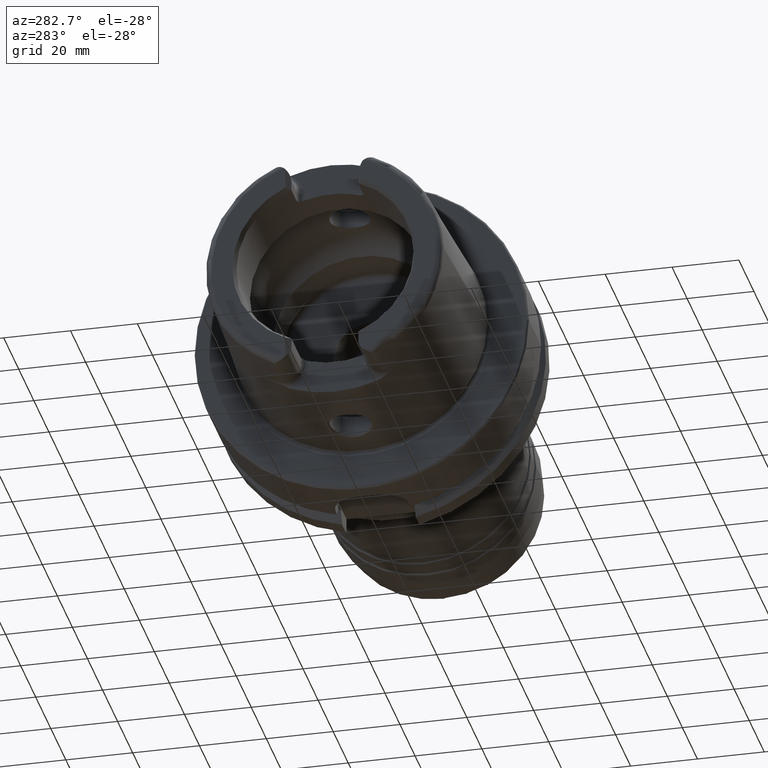
[diagram: clean part render]
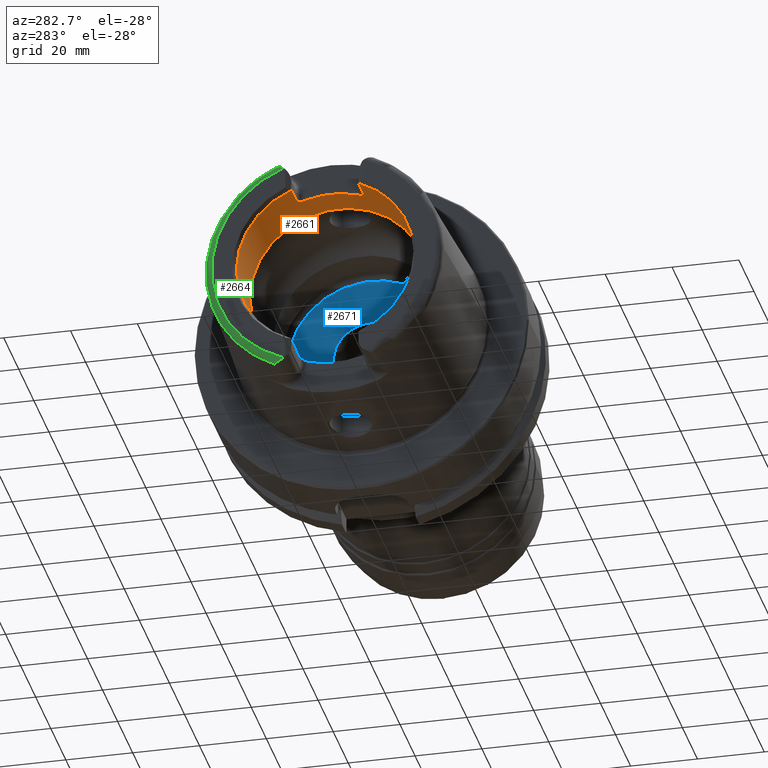
[diagram: same view with three faces highlighted in distinct colors, each labeled with its STEP entity id]
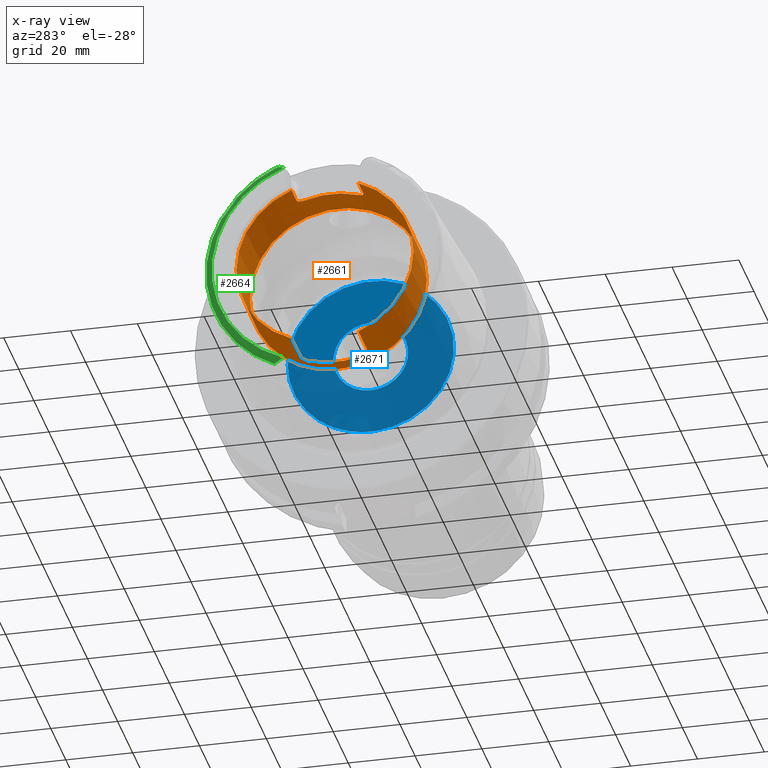
[diagram: x-ray of the same camera — body ghosted, the three highlighted faces saturated]
A machine part, auxiliary view with three faces highlighted in distinct colors.
The next image is the same camera in x-ray (body ghosted, the three faces saturated) — at least one of them is partly hidden behind the body in this view.
Their STEP definitions:

[orange] entity #2661 — the highlighted cylindrical surface (bore or boss wall) has radius 26.5 mm, axis along (-1, 0, 0).
#81=B_SPLINE_CURVE_WITH_KNOTS('',3,(#5491,#5492,#5493,#5494,#5495,#5496,
#5497,#5498,#5499,#5500),.UNSPECIFIED.,.F.,.F.,(4,2,2,2,4),(0.307245873696209,
0.387318131676521,0.467390389656833,0.542677307505841,0.617964225354849),
 .UNSPECIFIED.);
#82=B_SPLINE_CURVE_WITH_KNOTS('',3,(#5509,#5510,#5511,#5512,#5513,#5514,
#5515,#5516,#5517,#5518),.UNSPECIFIED.,.F.,.F.,(4,2,2,2,4),(0.61796422535485,
0.694491364966707,0.771018504578565,0.849854597041439,0.928690689504313),
 .UNSPECIFIED.);
#83=B_SPLINE_CURVE_WITH_KNOTS('',3,(#5527,#5528,#5529,#5530,#5531,#5532,
#5533,#5534,#5535,#5536),.UNSPECIFIED.,.F.,.F.,(4,2,2,2,4),(0.617964225354849,
0.693251143203857,0.768538061052865,0.848610319033177,0.928682577013489),
 .UNSPECIFIED.);
#84=B_SPLINE_CURVE_WITH_KNOTS('',3,(#5550,#5551,#5552,#5553,#5554,#5555,
#5556,#5557,#5558,#5559),.UNSPECIFIED.,.F.,.F.,(4,2,2,2,4),(0.307245873696209,
0.387318131676521,0.467390389656833,0.542677307505841,0.617964225354849),
 .UNSPECIFIED.);
#127=CYLINDRICAL_SURFACE('',#3007,26.5);
#211=LINE('',#4242,#326);
#217=LINE('',#4336,#332);
#223=LINE('',#4352,#338);
#227=LINE('',#4418,#342);
#288=LINE('',#5576,#403);
#326=VECTOR('',#3411,10.);
#332=VECTOR('',#3441,10.);
#338=VECTOR('',#3455,10.);
#342=VECTOR('',#3479,10.);
#403=VECTOR('',#3792,26.5);
#537=FACE_OUTER_BOUND('',#680,.T.);
#680=EDGE_LOOP('',(#2341,#2342,#2343,#2344,#2345,#2346,#2347,#2348,#2349,
#2350,#2351,#2352,#2353,#2354,#2355,#2356,#2357,#2358));
#893=CIRCLE('',#2995,26.5);
#898=CIRCLE('',#3006,26.5);
#899=CIRCLE('',#3008,26.5);
#900=CIRCLE('',#3009,26.5);
#901=CIRCLE('',#3010,26.5);
#902=CIRCLE('',#3011,26.5);
#903=CIRCLE('',#3012,26.5);
#904=CIRCLE('',#3013,26.5);
#1054=VERTEX_POINT('',#4232);
#1057=VERTEX_POINT('',#4240);
#1066=VERTEX_POINT('',#4289);
#1073=VERTEX_POINT('',#4335);
#1076=VERTEX_POINT('',#4342);
#1079=VERTEX_POINT('',#4350);
#1086=VERTEX_POINT('',#4385);
#1091=VERTEX_POINT('',#4417);
#1204=VERTEX_POINT('',#5489);
#1206=VERTEX_POINT('',#5508);
#1208=VERTEX_POINT('',#5526);
#1209=VERTEX_POINT('',#5543);
#1211=VERTEX_POINT('',#5570);
#1212=VERTEX_POINT('',#5571);
#1213=VERTEX_POINT('',#5573);
#1214=VERTEX_POINT('',#5575);
#1384=EDGE_CURVE('',#1054,#1057,#211,.T.);
#1402=EDGE_CURVE('',#1073,#1066,#217,.T.);
#1410=EDGE_CURVE('',#1076,#1079,#223,.T.);
#1424=EDGE_CURVE('',#1091,#1086,#227,.T.);
#1589=EDGE_CURVE('',#1204,#1079,#81,.T.);
#1593=EDGE_CURVE('',#1091,#1206,#82,.T.);
#1598=EDGE_CURVE('',#1073,#1208,#83,.T.);
#1602=EDGE_CURVE('',#1209,#1208,#893,.T.);
#1606=EDGE_CURVE('',#1209,#1057,#84,.T.);
#1610=EDGE_CURVE('',#1204,#1206,#898,.T.);
#1611=EDGE_CURVE('',#1211,#1212,#899,.T.);
#1612=EDGE_CURVE('',#1213,#1211,#900,.T.);
#1613=EDGE_CURVE('',#1213,#1214,#288,.T.);
#1614=EDGE_CURVE('',#1076,#1214,#901,.T.);
#1615=EDGE_CURVE('',#1054,#1086,#902,.T.);
#1616=EDGE_CURVE('',#1214,#1066,#903,.T.);
#1617=EDGE_CURVE('',#1212,#1213,#904,.T.);
#2341=ORIENTED_EDGE('',*,*,#1611,.F.);
#2342=ORIENTED_EDGE('',*,*,#1612,.F.);
#2343=ORIENTED_EDGE('',*,*,#1613,.T.);
#2344=ORIENTED_EDGE('',*,*,#1614,.F.);
#2345=ORIENTED_EDGE('',*,*,#1410,.T.);
#2346=ORIENTED_EDGE('',*,*,#1589,.F.);
#2347=ORIENTED_EDGE('',*,*,#1610,.T.);
#2348=ORIENTED_EDGE('',*,*,#1593,.F.);
#2349=ORIENTED_EDGE('',*,*,#1424,.T.);
#2350=ORIENTED_EDGE('',*,*,#1615,.F.);
#2351=ORIENTED_EDGE('',*,*,#1384,.T.);
#2352=ORIENTED_EDGE('',*,*,#1606,.F.);
#2353=ORIENTED_EDGE('',*,*,#1602,.T.);
#2354=ORIENTED_EDGE('',*,*,#1598,.F.);
#2355=ORIENTED_EDGE('',*,*,#1402,.T.);
#2356=ORIENTED_EDGE('',*,*,#1616,.F.);
#2357=ORIENTED_EDGE('',*,*,#1613,.F.);
#2358=ORIENTED_EDGE('',*,*,#1617,.F.);
#2661=ADVANCED_FACE('',(#537),#127,.F.);
#2995=AXIS2_PLACEMENT_3D('',#5544,#3760,#3761);
#3006=AXIS2_PLACEMENT_3D('',#5568,#3784,#3785);
#3007=AXIS2_PLACEMENT_3D('',#5569,#3786,#3787);
#3008=AXIS2_PLACEMENT_3D('',#5572,#3788,#3789);
#3009=AXIS2_PLACEMENT_3D('',#5574,#3790,#3791);
#3010=AXIS2_PLACEMENT_3D('',#5577,#3793,#3794);
#3011=AXIS2_PLACEMENT_3D('',#5578,#3795,#3796);
#3012=AXIS2_PLACEMENT_3D('',#5579,#3797,#3798);
#3013=AXIS2_PLACEMENT_3D('',#5580,#3799,#3800);
#3411=DIRECTION('',(1.,0.,0.));
#3441=DIRECTION('',(-1.,0.,0.));
#3455=DIRECTION('',(1.,0.,0.));
#3479=DIRECTION('',(-1.,0.,0.));
#3760=DIRECTION('center_axis',(-1.,0.,0.));
#3761=DIRECTION('ref_axis',(0.,1.,0.));
#3784=DIRECTION('center_axis',(-1.,0.,0.));
#3785=DIRECTION('ref_axis',(0.,1.,0.));
#3786=DIRECTION('center_axis',(-1.,0.,0.));
#3787=DIRECTION('ref_axis',(0.,1.,0.));
#3788=DIRECTION('center_axis',(-1.,0.,0.));
#3789=DIRECTION('ref_axis',(0.,0.,1.));
#3790=DIRECTION('center_axis',(-1.,0.,0.));
#3791=DIRECTION('ref_axis',(0.,0.,1.));
#3792=DIRECTION('',(-1.,0.,0.));
#3793=DIRECTION('center_axis',(1.,0.,0.));
#3794=DIRECTION('ref_axis',(0.,-1.,0.));
#3795=DIRECTION('center_axis',(1.,0.,0.));
#3796=DIRECTION('ref_axis',(0.,-1.,0.));
#3797=DIRECTION('center_axis',(1.,0.,0.));
#3798=DIRECTION('ref_axis',(0.,-1.,0.));
#3799=DIRECTION('center_axis',(-1.,0.,0.));
#3800=DIRECTION('ref_axis',(0.,0.,1.));
#4232=CARTESIAN_POINT('',(-48.5,10.01,-24.5367051577835));
#4240=CARTESIAN_POINT('',(-37.,10.01,-24.5367051577835));
#4242=CARTESIAN_POINT('',(-40.2903629710818,10.01,-24.5367051577835));
#4289=CARTESIAN_POINT('',(-48.5,-10.01,-24.5367051577835));
#4335=CARTESIAN_POINT('',(-37.,-10.01,-24.5367051577835));
#4336=CARTESIAN_POINT('',(-40.2903629710818,-10.01,-24.5367051577835));
#4342=CARTESIAN_POINT('',(-48.5,-10.01,24.5367051577835));
#4350=CARTESIAN_POINT('',(-42.,-10.01,24.5367051577835));
#4352=CARTESIAN_POINT('',(-40.2903629710818,-10.01,24.5367051577835));
#4385=CARTESIAN_POINT('',(-48.5,10.01,24.5367051577835));
#4417=CARTESIAN_POINT('',(-42.,10.01,24.5367051577835));
#4418=CARTESIAN_POINT('',(-40.2903629710818,10.01,24.5367051577835));
#5489=CARTESIAN_POINT('',(-40.,-8.01,25.2604414054862));
#5491=CARTESIAN_POINT('Ctrl Pts',(-40.,-8.01,25.2604414054862));
#5492=CARTESIAN_POINT('Ctrl Pts',(-40.,-8.26442271458071,25.1797648285777));
#5493=CARTESIAN_POINT('Ctrl Pts',(-40.0513332778729,-8.53503831367686,25.0892968127514));
#5494=CARTESIAN_POINT('Ctrl Pts',(-40.2604388709541,-9.03317850506395,24.9142806373643));
#5495=CARTESIAN_POINT('Ctrl Pts',(-40.4182028025644,-9.2607746884821,24.8299262887475));
#5496=CARTESIAN_POINT('Ctrl Pts',(-40.7762398849713,-9.61038047170956,24.6966285655713));
#5497=CARTESIAN_POINT('Ctrl Pts',(-40.996584045901,-9.75993653512726,24.6374761492843));
#5498=CARTESIAN_POINT('Ctrl Pts',(-41.4829332858843,-9.95981108540838,24.557356442995));
#5499=CARTESIAN_POINT('Ctrl Pts',(-41.74904360717,-10.01,24.5367051577835));
#5500=CARTESIAN_POINT('Ctrl Pts',(-42.,-10.01,24.5367051577835));
#5508=CARTESIAN_POINT('',(-40.,8.01,25.2604414054862));
#5509=CARTESIAN_POINT('Ctrl Pts',(-42.,10.01,24.5367051577835));
#5510=CARTESIAN_POINT('Ctrl Pts',(-41.7449095346271,10.01,24.5367051577835));
#5511=CARTESIAN_POINT('Ctrl Pts',(-41.4747619014646,9.95816285425487,24.5580391842641));
#5512=CARTESIAN_POINT('Ctrl Pts',(-40.9823460284033,9.75229566196282,24.640515927451));
#5513=CARTESIAN_POINT('Ctrl Pts',(-40.7599680829949,9.59839520774108,24.7013267120605));
#5514=CARTESIAN_POINT('Ctrl Pts',(-40.4063494382929,9.24477656303909,24.8358806096526));
#5515=CARTESIAN_POINT('Ctrl Pts',(-40.2529543645221,9.01930384320105,24.9192727261742));
#5516=CARTESIAN_POINT('Ctrl Pts',(-40.049776768453,8.52719637786957,25.0919293188873));
#5517=CARTESIAN_POINT('Ctrl Pts',(-40.,8.26049490494288,25.1810103236462));
#5518=CARTESIAN_POINT('Ctrl Pts',(-40.,8.01,25.2604414054862));
#5526=CARTESIAN_POINT('',(-35.,-8.01,-25.2604414054862));
#5527=CARTESIAN_POINT('Ctrl Pts',(-37.,-10.01,-24.5367051577835));
#5528=CARTESIAN_POINT('Ctrl Pts',(-36.74904360717,-10.01,-24.5367051577835));
#5529=CARTESIAN_POINT('Ctrl Pts',(-36.4829332858843,-9.95981108540838,-24.557356442995));
#5530=CARTESIAN_POINT('Ctrl Pts',(-35.9965840459011,-9.75993653512726,-24.6374761492843));
#5531=CARTESIAN_POINT('Ctrl Pts',(-35.7762398849713,-9.61038047170956,-24.6966285655713));
#5532=CARTESIAN_POINT('Ctrl Pts',(-35.4182028025644,-9.2607746884821,-24.8299262887475));
#5533=CARTESIAN_POINT('Ctrl Pts',(-35.2604388709541,-9.03317850506395,-24.9142806373643));
#5534=CARTESIAN_POINT('Ctrl Pts',(-35.0513332778729,-8.53503831367686,-25.0892968127514));
#5535=CARTESIAN_POINT('Ctrl Pts',(-35.,-8.26442271458071,-25.1797648285777));
#5536=CARTESIAN_POINT('Ctrl Pts',(-35.,-8.01,-25.2604414054862));
#5543=CARTESIAN_POINT('',(-35.,8.01,-25.2604414054862));
#5544=CARTESIAN_POINT('Origin',(-35.,0.,0.));
#5550=CARTESIAN_POINT('Ctrl Pts',(-35.,8.01,-25.2604414054862));
#5551=CARTESIAN_POINT('Ctrl Pts',(-35.,8.26442271458071,-25.1797648285777));
#5552=CARTESIAN_POINT('Ctrl Pts',(-35.0513332778729,8.53503831367686,-25.0892968127514));
#5553=CARTESIAN_POINT('Ctrl Pts',(-35.2604388709541,9.03317850506395,-24.9142806373643));
#5554=CARTESIAN_POINT('Ctrl Pts',(-35.4182028025644,9.2607746884821,-24.8299262887475));
#5555=CARTESIAN_POINT('Ctrl Pts',(-35.7762398849713,9.61038047170956,-24.6966285655713));
#5556=CARTESIAN_POINT('Ctrl Pts',(-35.9965840459011,9.75993653512726,-24.6374761492843));
#5557=CARTESIAN_POINT('Ctrl Pts',(-36.4829332858843,9.95981108540838,-24.557356442995));
#5558=CARTESIAN_POINT('Ctrl Pts',(-36.74904360717,10.01,-24.5367051577835));
#5559=CARTESIAN_POINT('Ctrl Pts',(-37.,10.01,-24.5367051577835));
#5568=CARTESIAN_POINT('Origin',(-40.,0.,0.));
#5569=CARTESIAN_POINT('Origin',(-40.2903629710818,0.,0.));
#5570=CARTESIAN_POINT('',(-30.5807259421637,26.5,0.));
#5571=CARTESIAN_POINT('',(-30.5807259421637,-3.24531401774049E-15,-26.5));
#5572=CARTESIAN_POINT('Origin',(-30.5807259421637,0.,0.));
#5573=CARTESIAN_POINT('',(-30.5807259421637,-26.5,3.24531401774049E-15));
#5574=CARTESIAN_POINT('Origin',(-30.5807259421637,0.,0.));
#5575=CARTESIAN_POINT('',(-48.5,-26.5,3.24531401774049E-15));
#5576=CARTESIAN_POINT('',(-40.2903629710818,-26.5,3.24531401774049E-15));
#5577=CARTESIAN_POINT('Origin',(-48.5,0.,0.));
#5578=CARTESIAN_POINT('Origin',(-48.5,0.,0.));
#5579=CARTESIAN_POINT('Origin',(-48.5,0.,0.));
#5580=CARTESIAN_POINT('Origin',(-30.5807259421637,0.,0.));

[blue] entity #2671 — the highlighted planar face has unit normal (1, 0, 0).
#141=FACE_BOUND('',#692,.T.);
#177=PLANE('',#3032);
#547=FACE_OUTER_BOUND('',#691,.T.);
#691=EDGE_LOOP('',(#2400,#2401));
#692=EDGE_LOOP('',(#2402,#2403));
#909=CIRCLE('',#3026,11.188101);
#910=CIRCLE('',#3027,11.188101);
#914=CIRCLE('',#3033,24.9);
#915=CIRCLE('',#3034,24.9);
#1215=VERTEX_POINT('',#5593);
#1216=VERTEX_POINT('',#5594);
#1220=VERTEX_POINT('',#5606);
#1221=VERTEX_POINT('',#5607);
#1622=EDGE_CURVE('',#1215,#1216,#909,.T.);
#1623=EDGE_CURVE('',#1216,#1215,#910,.T.);
#1628=EDGE_CURVE('',#1220,#1221,#914,.T.);
#1629=EDGE_CURVE('',#1221,#1220,#915,.T.);
#2400=ORIENTED_EDGE('',*,*,#1628,.T.);
#2401=ORIENTED_EDGE('',*,*,#1629,.T.);
#2402=ORIENTED_EDGE('',*,*,#1622,.T.);
#2403=ORIENTED_EDGE('',*,*,#1623,.T.);
#2671=ADVANCED_FACE('',(#547,#141),#177,.F.);
#3026=AXIS2_PLACEMENT_3D('',#5595,#3825,#3826);
#3027=AXIS2_PLACEMENT_3D('',#5596,#3827,#3828);
#3032=AXIS2_PLACEMENT_3D('',#5605,#3838,#3839);
#3033=AXIS2_PLACEMENT_3D('',#5608,#3840,#3841);
#3034=AXIS2_PLACEMENT_3D('',#5609,#3842,#3843);
#3825=DIRECTION('center_axis',(1.,0.,0.));
#3826=DIRECTION('ref_axis',(0.,0.,1.));
#3827=DIRECTION('center_axis',(1.,0.,0.));
#3828=DIRECTION('ref_axis',(0.,0.,1.));
#3838=DIRECTION('center_axis',(1.,0.,0.));
#3839=DIRECTION('ref_axis',(0.,0.,-1.));
#3840=DIRECTION('center_axis',(-1.,0.,0.));
#3841=DIRECTION('ref_axis',(0.,0.,1.));
#3842=DIRECTION('center_axis',(-1.,0.,0.));
#3843=DIRECTION('ref_axis',(0.,0.,1.));
#5593=CARTESIAN_POINT('',(12.5,0.,11.188101));
#5594=CARTESIAN_POINT('',(12.5,-1.37014720781873E-15,-11.188101));
#5595=CARTESIAN_POINT('Origin',(12.5,0.,0.));
#5596=CARTESIAN_POINT('Origin',(12.5,0.,0.));
#5605=CARTESIAN_POINT('Origin',(12.5,24.9,0.));
#5606=CARTESIAN_POINT('',(12.5,24.9,0.));
#5607=CARTESIAN_POINT('',(12.5,-3.04937052987691E-15,-24.9));
#5608=CARTESIAN_POINT('Origin',(12.5,0.,0.));
#5609=CARTESIAN_POINT('Origin',(12.5,0.,0.));

[green] entity #2664 — the highlighted toroidal blend (fillet) surface has major radius 33.6002 mm and minor (blend) radius 2 mm.
#31=B_SPLINE_CURVE_WITH_KNOTS('',3,(#4247,#4248,#4249,#4250,#4251,#4252,
#4253,#4254,#4255,#4256,#4257,#4258),.UNSPECIFIED.,.F.,.F.,(4,2,2,2,2,4),
(-0.744485085130371,-0.701284148098642,-0.656581713087942,-0.531183195108755,
-0.406814905045421,-0.32076786300396),.UNSPECIFIED.);
#38=B_SPLINE_CURVE_WITH_KNOTS('',3,(#4403,#4404,#4405,#4406,#4407,#4408,
#4409,#4410,#4411,#4412,#4413,#4414),.UNSPECIFIED.,.F.,.F.,(4,2,2,2,2,4),
(-0.330492941280221,-0.267730672592689,-0.159783637268103,-0.0785649842435394,
-0.0319753598823862,-6.79221864796145E-5),.UNSPECIFIED.);
#540=FACE_OUTER_BOUND('',#683,.T.);
#683=EDGE_LOOP('',(#2369,#2370,#2371,#2372));
#837=CIRCLE('',#2889,35.5976786130245);
#906=CIRCLE('',#3017,33.6001839277785);
#1058=VERTEX_POINT('',#4244);
#1059=VERTEX_POINT('',#4246);
#1089=VERTEX_POINT('',#4393);
#1090=VERTEX_POINT('',#4402);
#1386=EDGE_CURVE('',#1059,#1058,#31,.T.);
#1422=EDGE_CURVE('',#1090,#1089,#38,.T.);
#1441=EDGE_CURVE('',#1059,#1089,#837,.T.);
#1619=EDGE_CURVE('',#1058,#1090,#906,.T.);
#2369=ORIENTED_EDGE('',*,*,#1422,.T.);
#2370=ORIENTED_EDGE('',*,*,#1441,.F.);
#2371=ORIENTED_EDGE('',*,*,#1386,.T.);
#2372=ORIENTED_EDGE('',*,*,#1619,.T.);
#2548=TOROIDAL_SURFACE('',#3018,33.6001839277785,2.);
#2664=ADVANCED_FACE('',(#540),#2548,.T.);
#2889=AXIS2_PLACEMENT_3D('',#4653,#3493,#3494);
#3017=AXIS2_PLACEMENT_3D('',#5584,#3807,#3808);
#3018=AXIS2_PLACEMENT_3D('',#5585,#3809,#3810);
#3493=DIRECTION('center_axis',(1.,0.,0.));
#3494=DIRECTION('ref_axis',(0.,0.,-1.));
#3807=DIRECTION('center_axis',(1.,0.,0.));
#3808=DIRECTION('ref_axis',(0.,0.,-1.));
#3809=DIRECTION('center_axis',(1.,0.,0.));
#3810=DIRECTION('ref_axis',(0.,0.,-1.));
#4244=CARTESIAN_POINT('',(-50.,12.0743049948301,-31.355757348091));
#4246=CARTESIAN_POINT('',(-48.1000748840304,15.0787152148571,-32.2463497175327));
#4247=CARTESIAN_POINT('Ctrl Pts',(-48.1000748840304,15.0787152148571,-32.2463497175327));
#4248=CARTESIAN_POINT('Ctrl Pts',(-48.2105289331959,15.0644723890649,-32.2469009162952));
#4249=CARTESIAN_POINT('Ctrl Pts',(-48.3152849211513,15.0274043790922,-32.2483365520296));
#4250=CARTESIAN_POINT('Ctrl Pts',(-48.5158350355592,14.9227249886344,-32.2501807122049));
#4251=CARTESIAN_POINT('Ctrl Pts',(-48.6114759122292,14.8539486337751,-32.2504380099703));
#4252=CARTESIAN_POINT('Ctrl Pts',(-48.9444340259589,14.5699075364914,-32.2439932048825));
#4253=CARTESIAN_POINT('Ctrl Pts',(-49.1873237794489,14.2618237213855,-32.2229124522755));
#4254=CARTESIAN_POINT('Ctrl Pts',(-49.6096022065355,13.5557805634606,-32.0777680620402));
#4255=CARTESIAN_POINT('Ctrl Pts',(-49.7790094341757,13.1775605707035,-31.9575317726829));
#4256=CARTESIAN_POINT('Ctrl Pts',(-49.9573633441756,12.558596693048,-31.6661869684752));
#4257=CARTESIAN_POINT('Ctrl Pts',(-50.,12.3094122367882,-31.5218463066117));
#4258=CARTESIAN_POINT('Ctrl Pts',(-50.,12.0743049948301,-31.355757348091));
#4393=CARTESIAN_POINT('',(-48.1000748840304,15.0787152148571,32.2463497175327));
#4402=CARTESIAN_POINT('',(-50.,12.0743049948301,31.355757348091));
#4403=CARTESIAN_POINT('Ctrl Pts',(-50.,12.0743049948301,31.355757348091));
#4404=CARTESIAN_POINT('Ctrl Pts',(-50.,12.2864160042029,31.5056008677721));
#4405=CARTESIAN_POINT('Ctrl Pts',(-49.9651812414519,12.5182840828269,31.6438016135977));
#4406=CARTESIAN_POINT('Ctrl Pts',(-49.7800952926341,13.1934814711232,31.9701190766009));
#4407=CARTESIAN_POINT('Ctrl Pts',(-49.5793805506894,13.6220310736951,32.0976134655659));
#4408=CARTESIAN_POINT('Ctrl Pts',(-49.170216000735,14.2749893309021,32.2194840260055));
#4409=CARTESIAN_POINT('Ctrl Pts',(-48.9762638716763,14.5215824129495,32.2396097025416));
#4410=CARTESIAN_POINT('Ctrl Pts',(-48.6666306582889,14.8133702905837,32.2505591140316));
#4411=CARTESIAN_POINT('Ctrl Pts',(-48.5389792055843,14.9127554064334,32.2504492219699));
#4412=CARTESIAN_POINT('Ctrl Pts',(-48.3058528414878,15.0307034754738,32.2482068363322));
#4413=CARTESIAN_POINT('Ctrl Pts',(-48.2055479344945,15.0651146787529,32.2468760596209));
#4414=CARTESIAN_POINT('Ctrl Pts',(-48.1000748840303,15.0787152148571,32.2463497175327));
#4653=CARTESIAN_POINT('Origin',(-48.1000748840304,0.,0.));
#5584=CARTESIAN_POINT('Origin',(-50.,0.,0.));
#5585=CARTESIAN_POINT('Origin',(-48.,0.,0.));